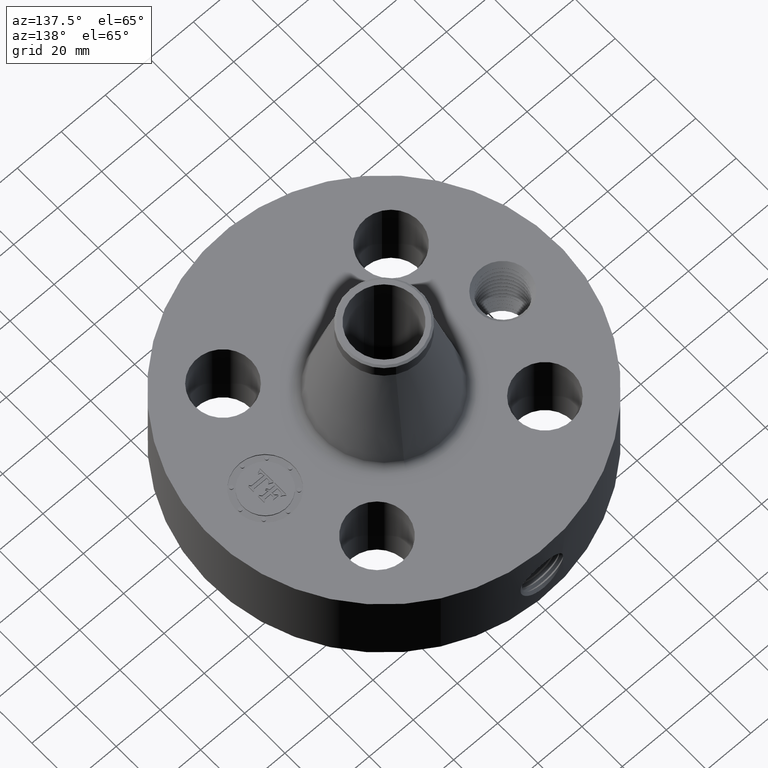
[diagram: clean part render]
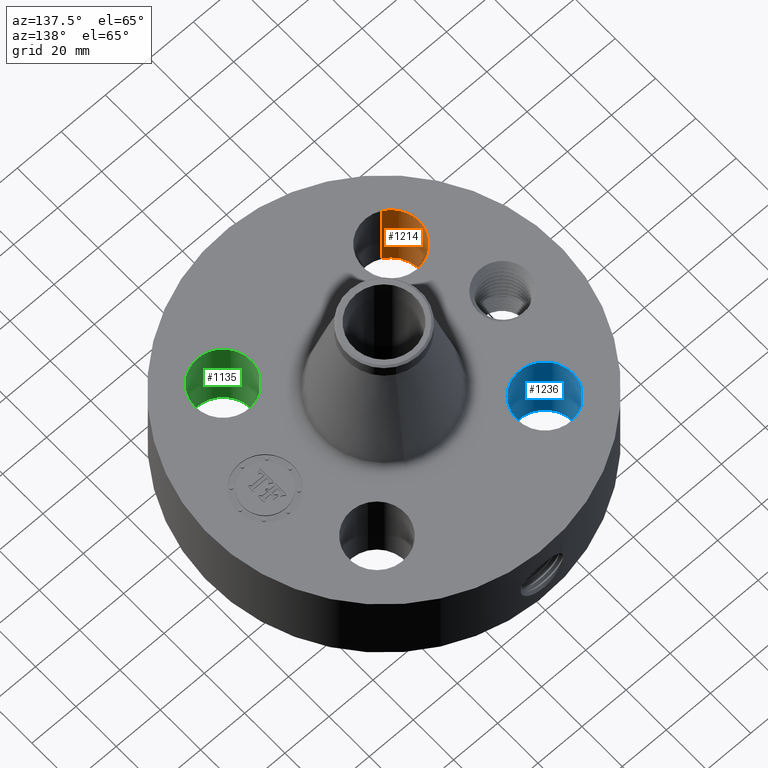
[diagram: same view with three faces highlighted in distinct colors, each labeled with its STEP entity id]
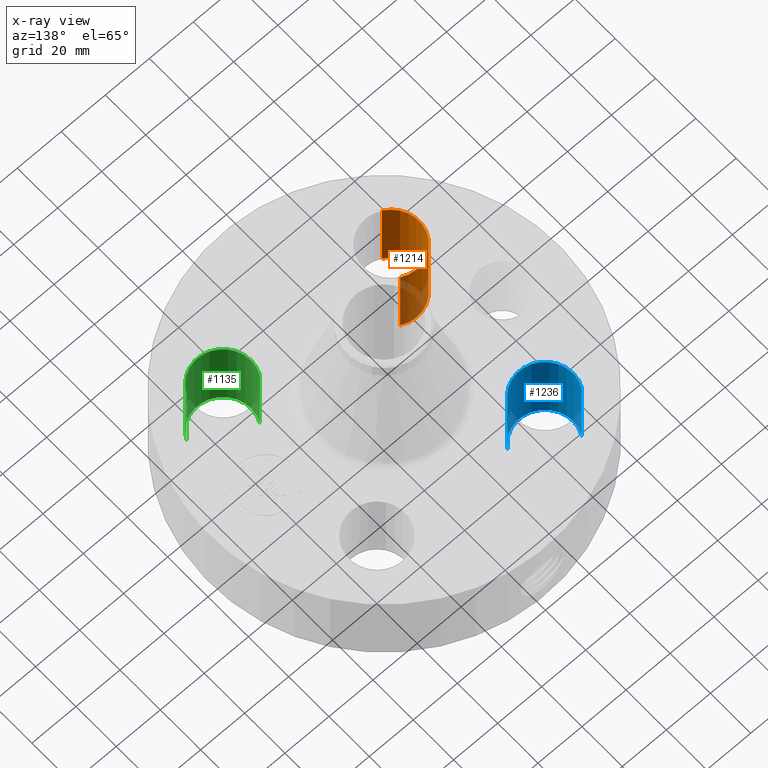
[diagram: x-ray of the same camera — body ghosted, the three highlighted faces saturated]
A machine part, auxiliary view with three faces highlighted in distinct colors.
The next image is the same camera in x-ray (body ghosted, the three faces saturated) — at least one of them is partly hidden behind the body in this view.
Their STEP definitions:

[orange] entity #1214 — the highlighted cylindrical surface (partial cylindrical patch) has radius 12.7 mm, axis along (0, -0, -1).
#269=AXIS2_PLACEMENT_3D('Circle Axis2P3D',#267,#268,$) ;
#505=AXIS2_PLACEMENT_3D('Circle Axis2P3D',#503,#504,$) ;
#1189=AXIS2_PLACEMENT_3D('Cylinder Axis2P3D',#1186,#1187,#1188) ;
#262=CARTESIAN_POINT('Vertex',(-1.26288914072,-1.06381062908,0.250000000001)) ;
#264=CARTESIAN_POINT('Vertex',(-1.74231467933,-1.94139319097,0.250000000001)) ;
#267=CARTESIAN_POINT('Axis2P3D Location',(-1.50260191003,-1.50260191003,0.250000000001)) ;
#503=CARTESIAN_POINT('Axis2P3D Location',(-1.50260191003,-1.50260191003,1.75000000001)) ;
#507=CARTESIAN_POINT('Vertex',(-1.74231467933,-1.94139319097,1.75000000001)) ;
#509=CARTESIAN_POINT('Vertex',(-1.26288914072,-1.06381062908,1.75000000001)) ;
#1186=CARTESIAN_POINT('Axis2P3D Location',(-1.50260191003,-1.50260191003,1.74606299213)) ;
#1191=CARTESIAN_POINT('Line Origine',(-1.26288914072,-1.06381062908,1.)) ;
#1196=CARTESIAN_POINT('Line Origine',(-1.74231467933,-1.94139319097,1.)) ;
#268=DIRECTION('Axis2P3D Direction',(0.,0.,-0.0393700787402)) ;
#504=DIRECTION('Axis2P3D Direction',(0.,0.,-0.0393700787402)) ;
#1187=DIRECTION('Axis2P3D Direction',(0.,-0.,-0.0393700787402)) ;
#1188=DIRECTION('Axis2P3D XDirection',(-0.0188750212049,-0.0345504945626,0.)) ;
#1192=DIRECTION('Vector Direction',(0.,0.,-0.0393700787402)) ;
#1197=DIRECTION('Vector Direction',(0.,0.,-0.0393700787402)) ;
#1193=VECTOR('Line Direction',#1192,0.0393700787402) ;
#1198=VECTOR('Line Direction',#1197,0.0393700787402) ;
#1209=ORIENTED_EDGE('',*,*,#1200,.F.) ;
#1210=ORIENTED_EDGE('',*,*,#271,.T.) ;
#1211=ORIENTED_EDGE('',*,*,#1195,.T.) ;
#1212=ORIENTED_EDGE('',*,*,#511,.F.) ;
#1214=ADVANCED_FACE('PartBody',(#1213),#1190,.F.) ;
#270=CIRCLE('generated circle',#269,0.500000000002) ;
#506=CIRCLE('generated circle',#505,0.500000000002) ;
#1190=CYLINDRICAL_SURFACE('generated cylinder',#1189,0.500000000002) ;
#271=EDGE_CURVE('',#265,#263,#270,.T.) ;
#511=EDGE_CURVE('',#508,#510,#506,.T.) ;
#1195=EDGE_CURVE('',#263,#510,#1194,.F.) ;
#1200=EDGE_CURVE('',#265,#508,#1199,.F.) ;
#1208=EDGE_LOOP('',(#1209,#1210,#1211,#1212)) ;
#1213=FACE_OUTER_BOUND('',#1208,.T.) ;
#1194=LINE('Line',#1191,#1193) ;
#1199=LINE('Line',#1196,#1198) ;
#263=VERTEX_POINT('',#262) ;
#265=VERTEX_POINT('',#264) ;
#508=VERTEX_POINT('',#507) ;
#510=VERTEX_POINT('',#509) ;

[blue] entity #1236 — the highlighted cylindrical surface (partial cylindrical patch) has radius 12.7 mm, axis along (-0, 0, -1).
#278=AXIS2_PLACEMENT_3D('Circle Axis2P3D',#276,#277,$) ;
#532=AXIS2_PLACEMENT_3D('Circle Axis2P3D',#530,#531,$) ;
#1218=AXIS2_PLACEMENT_3D('Cylinder Axis2P3D',#1215,#1216,#1217) ;
#276=CARTESIAN_POINT('Axis2P3D Location',(-1.50260191003,1.50260191003,0.250000000001)) ;
#280=CARTESIAN_POINT('Vertex',(-1.06381062908,1.26288914072,0.250000000001)) ;
#282=CARTESIAN_POINT('Vertex',(-1.94139319097,1.74231467933,0.250000000001)) ;
#525=CARTESIAN_POINT('Vertex',(-1.94139319097,1.74231467933,1.75000000001)) ;
#527=CARTESIAN_POINT('Vertex',(-1.06381062908,1.26288914072,1.75000000001)) ;
#530=CARTESIAN_POINT('Axis2P3D Location',(-1.50260191003,1.50260191003,1.75000000001)) ;
#1215=CARTESIAN_POINT('Axis2P3D Location',(-1.50260191003,1.50260191003,1.74606299213)) ;
#1220=CARTESIAN_POINT('Line Origine',(-1.06381062908,1.26288914072,1.)) ;
#1225=CARTESIAN_POINT('Line Origine',(-1.94139319097,1.74231467933,1.)) ;
#277=DIRECTION('Axis2P3D Direction',(0.,0.,-0.0393700787402)) ;
#531=DIRECTION('Axis2P3D Direction',(0.,0.,-0.0393700787402)) ;
#1216=DIRECTION('Axis2P3D Direction',(-0.,0.,-0.0393700787402)) ;
#1217=DIRECTION('Axis2P3D XDirection',(-0.0345504945626,0.0188750212049,0.)) ;
#1221=DIRECTION('Vector Direction',(0.,0.,-0.0393700787402)) ;
#1226=DIRECTION('Vector Direction',(0.,0.,-0.0393700787402)) ;
#1222=VECTOR('Line Direction',#1221,0.0393700787402) ;
#1227=VECTOR('Line Direction',#1226,0.0393700787402) ;
#1231=ORIENTED_EDGE('',*,*,#1224,.F.) ;
#1232=ORIENTED_EDGE('',*,*,#284,.T.) ;
#1233=ORIENTED_EDGE('',*,*,#1229,.T.) ;
#1234=ORIENTED_EDGE('',*,*,#534,.F.) ;
#1236=ADVANCED_FACE('PartBody',(#1235),#1219,.F.) ;
#279=CIRCLE('generated circle',#278,0.500000000002) ;
#533=CIRCLE('generated circle',#532,0.500000000002) ;
#1219=CYLINDRICAL_SURFACE('generated cylinder',#1218,0.500000000002) ;
#284=EDGE_CURVE('',#281,#283,#279,.T.) ;
#534=EDGE_CURVE('',#528,#526,#533,.T.) ;
#1224=EDGE_CURVE('',#281,#528,#1223,.F.) ;
#1229=EDGE_CURVE('',#283,#526,#1228,.F.) ;
#1230=EDGE_LOOP('',(#1231,#1232,#1233,#1234)) ;
#1235=FACE_OUTER_BOUND('',#1230,.T.) ;
#1223=LINE('Line',#1220,#1222) ;
#1228=LINE('Line',#1225,#1227) ;
#281=VERTEX_POINT('',#280) ;
#283=VERTEX_POINT('',#282) ;
#526=VERTEX_POINT('',#525) ;
#528=VERTEX_POINT('',#527) ;

[green] entity #1135 — the highlighted cylindrical surface (partial cylindrical patch) has radius 12.7 mm, axis along (0, -0, -1).
#224=AXIS2_PLACEMENT_3D('Circle Axis2P3D',#222,#223,$) ;
#478=AXIS2_PLACEMENT_3D('Circle Axis2P3D',#476,#477,$) ;
#1117=AXIS2_PLACEMENT_3D('Cylinder Axis2P3D',#1114,#1115,#1116) ;
#222=CARTESIAN_POINT('Axis2P3D Location',(1.50260191003,-1.50260191003,0.250000000001)) ;
#226=CARTESIAN_POINT('Vertex',(1.94139319097,-1.74231467933,0.250000000001)) ;
#228=CARTESIAN_POINT('Vertex',(1.06381062908,-1.26288914072,0.250000000001)) ;
#471=CARTESIAN_POINT('Vertex',(1.06381062908,-1.26288914072,1.75000000001)) ;
#473=CARTESIAN_POINT('Vertex',(1.94139319097,-1.74231467933,1.75000000001)) ;
#476=CARTESIAN_POINT('Axis2P3D Location',(1.50260191003,-1.50260191003,1.75000000001)) ;
#1114=CARTESIAN_POINT('Axis2P3D Location',(1.50260191003,-1.50260191003,1.74606299213)) ;
#1119=CARTESIAN_POINT('Line Origine',(1.94139319097,-1.74231467933,1.)) ;
#1124=CARTESIAN_POINT('Line Origine',(1.06381062908,-1.26288914072,1.)) ;
#223=DIRECTION('Axis2P3D Direction',(0.,0.,-0.0393700787402)) ;
#477=DIRECTION('Axis2P3D Direction',(0.,0.,-0.0393700787402)) ;
#1115=DIRECTION('Axis2P3D Direction',(0.,-0.,-0.0393700787402)) ;
#1116=DIRECTION('Axis2P3D XDirection',(-0.0345504945626,0.0188750212049,0.)) ;
#1120=DIRECTION('Vector Direction',(0.,0.,-0.0393700787402)) ;
#1125=DIRECTION('Vector Direction',(0.,0.,-0.0393700787402)) ;
#1121=VECTOR('Line Direction',#1120,0.0393700787402) ;
#1126=VECTOR('Line Direction',#1125,0.0393700787402) ;
#1130=ORIENTED_EDGE('',*,*,#1123,.F.) ;
#1131=ORIENTED_EDGE('',*,*,#230,.T.) ;
#1132=ORIENTED_EDGE('',*,*,#1128,.T.) ;
#1133=ORIENTED_EDGE('',*,*,#480,.F.) ;
#1135=ADVANCED_FACE('PartBody',(#1134),#1118,.F.) ;
#225=CIRCLE('generated circle',#224,0.500000000002) ;
#479=CIRCLE('generated circle',#478,0.500000000002) ;
#1118=CYLINDRICAL_SURFACE('generated cylinder',#1117,0.500000000002) ;
#230=EDGE_CURVE('',#227,#229,#225,.T.) ;
#480=EDGE_CURVE('',#474,#472,#479,.T.) ;
#1123=EDGE_CURVE('',#227,#474,#1122,.F.) ;
#1128=EDGE_CURVE('',#229,#472,#1127,.F.) ;
#1129=EDGE_LOOP('',(#1130,#1131,#1132,#1133)) ;
#1134=FACE_OUTER_BOUND('',#1129,.T.) ;
#1122=LINE('Line',#1119,#1121) ;
#1127=LINE('Line',#1124,#1126) ;
#227=VERTEX_POINT('',#226) ;
#229=VERTEX_POINT('',#228) ;
#472=VERTEX_POINT('',#471) ;
#474=VERTEX_POINT('',#473) ;